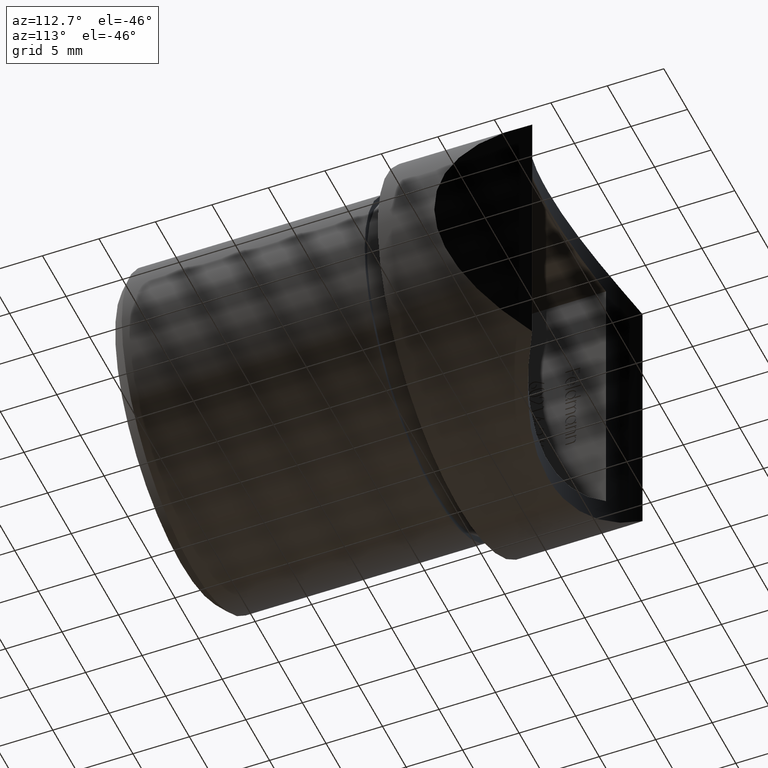
[diagram: clean part render]
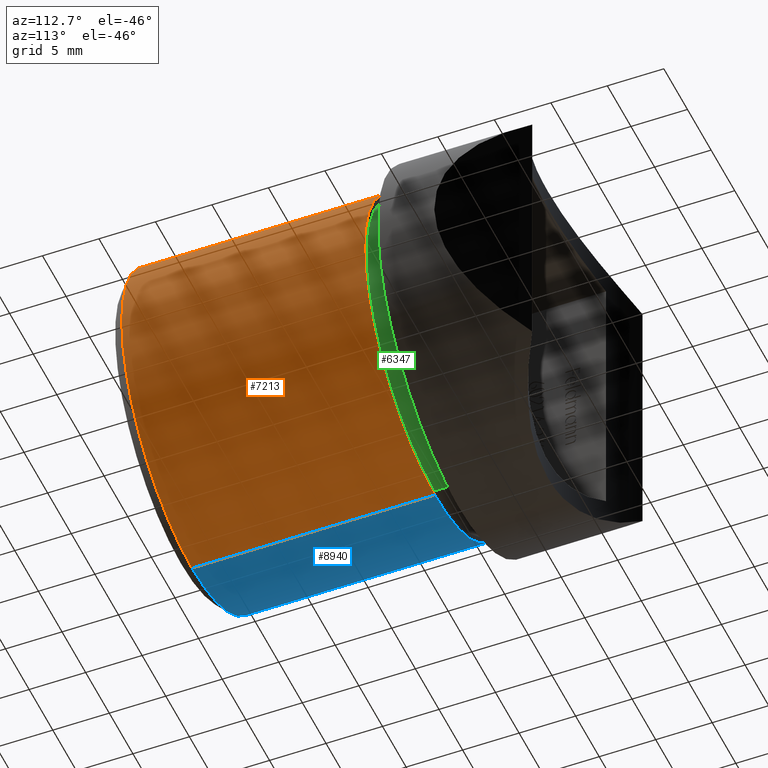
[diagram: same view with three faces highlighted in distinct colors, each labeled with its STEP entity id]
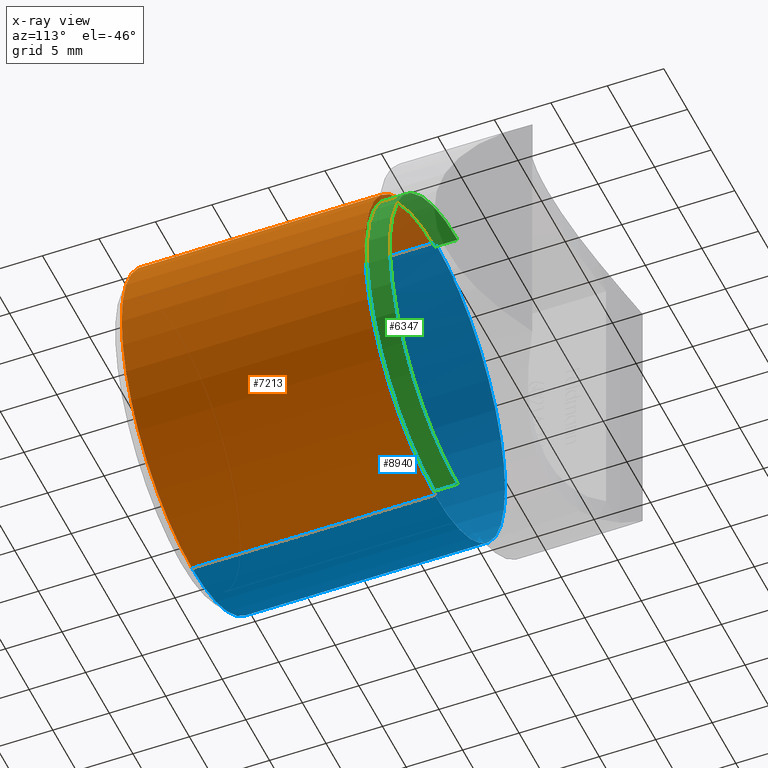
[diagram: x-ray of the same camera — body ghosted, the three highlighted faces saturated]
A machine part, auxiliary view with three faces highlighted in distinct colors.
The next image is the same camera in x-ray (body ghosted, the three faces saturated) — at least one of them is partly hidden behind the body in this view.
Their STEP definitions:

[orange] entity #7213 — the highlighted cylindrical surface (partial cylindrical patch) has radius 14.85 mm, axis along (-0, 1, 0).
#65 = CARTESIAN_POINT ( 'NONE',  ( 0.0000000000000000000, -24.50000000000000000, 0.0000000000000000000 ) ) ;
#868 = AXIS2_PLACEMENT_3D ( 'NONE', #65, #2834, #7757 ) ;
#1061 = VECTOR ( 'NONE', #9323, 1000.000000000000000 ) ;
#1397 = AXIS2_PLACEMENT_3D ( 'NONE', #2095, #8778, #3045 ) ;
#1792 = CARTESIAN_POINT ( 'NONE',  ( 0.0000000000000000000, -24.50000000000000000, 14.85000000000000100 ) ) ;
#1856 = ORIENTED_EDGE ( 'NONE', *, *, #9765, .F. ) ;
#1973 = CARTESIAN_POINT ( 'NONE',  ( 1.818600496733819600E-015, -23.50000000000002100, -14.85000000000000100 ) ) ;
#2095 = CARTESIAN_POINT ( 'NONE',  ( 0.0000000000000000000, -2.000000000000000000, 0.0000000000000000000 ) ) ;
#2637 = CARTESIAN_POINT ( 'NONE',  ( 1.818600496733819600E-015, -24.50000000000000000, -14.85000000000000100 ) ) ;
#2781 = DIRECTION ( 'NONE',  ( -0.0000000000000000000, 1.000000000000000000, 0.0000000000000000000 ) ) ;
#2834 = DIRECTION ( 'NONE',  ( -0.0000000000000000000, 1.000000000000000000, 0.0000000000000000000 ) ) ;
#2890 = ORIENTED_EDGE ( 'NONE', *, *, #9294, .T. ) ;
#3045 = DIRECTION ( 'NONE',  ( 0.0000000000000000000, 0.0000000000000000000, -1.000000000000000000 ) ) ;
#3308 = AXIS2_PLACEMENT_3D ( 'NONE', #3918, #10581, #4898 ) ;
#3506 = EDGE_CURVE ( 'NONE', #12388, #11783, #4063, .T. ) ;
#3566 = CYLINDRICAL_SURFACE ( 'NONE', #868, 14.85000000000000100 ) ;
#3918 = CARTESIAN_POINT ( 'NONE',  ( 0.0000000000000000000, -23.50000000000002100, 0.0000000000000000000 ) ) ;
#4063 = CIRCLE ( 'NONE', #3308, 14.85000000000000100 ) ;
#4137 = CARTESIAN_POINT ( 'NONE',  ( 1.818600496733819600E-015, -2.000000000000000000, -14.85000000000000100 ) ) ;
#4610 = LINE ( 'NONE', #1792, #9685 ) ;
#4898 = DIRECTION ( 'NONE',  ( 0.0000000000000000000, 0.0000000000000000000, -1.000000000000000000 ) ) ;
#4962 = CARTESIAN_POINT ( 'NONE',  ( 0.0000000000000000000, -23.50000000000002100, 14.85000000000000100 ) ) ;
#7213 = ADVANCED_FACE ( 'NONE', ( #8660 ), #3566, .T. ) ;
#7757 = DIRECTION ( 'NONE',  ( 0.0000000000000000000, 0.0000000000000000000, 1.000000000000000000 ) ) ;
#8002 = EDGE_LOOP ( 'NONE', ( #11117, #10816, #2890, #1856 ) ) ;
#8099 = VERTEX_POINT ( 'NONE', #4137 ) ;
#8363 = LINE ( 'NONE', #2637, #1061 ) ;
#8660 = FACE_OUTER_BOUND ( 'NONE', #8002, .T. ) ;
#8778 = DIRECTION ( 'NONE',  ( 0.0000000000000000000, -1.000000000000000000, 0.0000000000000000000 ) ) ;
#9294 = EDGE_CURVE ( 'NONE', #8099, #9338, #12405, .T. ) ;
#9323 = DIRECTION ( 'NONE',  ( -0.0000000000000000000, 1.000000000000000000, 0.0000000000000000000 ) ) ;
#9338 = VERTEX_POINT ( 'NONE', #9776 ) ;
#9685 = VECTOR ( 'NONE', #2781, 1000.000000000000000 ) ;
#9765 = EDGE_CURVE ( 'NONE', #12388, #9338, #4610, .T. ) ;
#9776 = CARTESIAN_POINT ( 'NONE',  ( 0.0000000000000000000, -2.000000000000000000, 14.85000000000000100 ) ) ;
#10581 = DIRECTION ( 'NONE',  ( 0.0000000000000000000, 1.000000000000000000, 0.0000000000000000000 ) ) ;
#10816 = ORIENTED_EDGE ( 'NONE', *, *, #12175, .T. ) ;
#11117 = ORIENTED_EDGE ( 'NONE', *, *, #3506, .T. ) ;
#11783 = VERTEX_POINT ( 'NONE', #1973 ) ;
#12175 = EDGE_CURVE ( 'NONE', #11783, #8099, #8363, .T. ) ;
#12388 = VERTEX_POINT ( 'NONE', #4962 ) ;
#12405 = CIRCLE ( 'NONE', #1397, 14.85000000000000100 ) ;

[blue] entity #8940 — the highlighted cylindrical surface (partial cylindrical patch) has radius 14.85 mm, axis along (-0, 1, 0).
#171 = AXIS2_PLACEMENT_3D ( 'NONE', #9085, #11082, #9157 ) ;
#1061 = VECTOR ( 'NONE', #9323, 1000.000000000000000 ) ;
#1750 = DIRECTION ( 'NONE',  ( 0.0000000000000000000, 1.000000000000000000, 0.0000000000000000000 ) ) ;
#1792 = CARTESIAN_POINT ( 'NONE',  ( 0.0000000000000000000, -24.50000000000000000, 14.85000000000000100 ) ) ;
#1968 = EDGE_CURVE ( 'NONE', #11783, #12388, #7688, .T. ) ;
#1973 = CARTESIAN_POINT ( 'NONE',  ( 1.818600496733819600E-015, -23.50000000000002100, -14.85000000000000100 ) ) ;
#2173 = ORIENTED_EDGE ( 'NONE', *, *, #9765, .T. ) ;
#2514 = CIRCLE ( 'NONE', #2662, 14.85000000000000100 ) ;
#2637 = CARTESIAN_POINT ( 'NONE',  ( 1.818600496733819600E-015, -24.50000000000000000, -14.85000000000000100 ) ) ;
#2662 = AXIS2_PLACEMENT_3D ( 'NONE', #10700, #4999, #11687 ) ;
#2781 = DIRECTION ( 'NONE',  ( -0.0000000000000000000, 1.000000000000000000, 0.0000000000000000000 ) ) ;
#4137 = CARTESIAN_POINT ( 'NONE',  ( 1.818600496733819600E-015, -2.000000000000000000, -14.85000000000000100 ) ) ;
#4346 = CYLINDRICAL_SURFACE ( 'NONE', #171, 14.85000000000000100 ) ;
#4610 = LINE ( 'NONE', #1792, #9685 ) ;
#4962 = CARTESIAN_POINT ( 'NONE',  ( 0.0000000000000000000, -23.50000000000002100, 14.85000000000000100 ) ) ;
#4999 = DIRECTION ( 'NONE',  ( 0.0000000000000000000, -1.000000000000000000, 0.0000000000000000000 ) ) ;
#5047 = ORIENTED_EDGE ( 'NONE', *, *, #12175, .F. ) ;
#7496 = CARTESIAN_POINT ( 'NONE',  ( 0.0000000000000000000, -23.50000000000002100, 0.0000000000000000000 ) ) ;
#7688 = CIRCLE ( 'NONE', #11699, 14.85000000000000100 ) ;
#8099 = VERTEX_POINT ( 'NONE', #4137 ) ;
#8363 = LINE ( 'NONE', #2637, #1061 ) ;
#8422 = DIRECTION ( 'NONE',  ( 0.0000000000000000000, 0.0000000000000000000, -1.000000000000000000 ) ) ;
#8717 = EDGE_LOOP ( 'NONE', ( #5047, #8872, #2173, #11428 ) ) ;
#8872 = ORIENTED_EDGE ( 'NONE', *, *, #1968, .T. ) ;
#8940 = ADVANCED_FACE ( 'NONE', ( #11979 ), #4346, .T. ) ;
#9085 = CARTESIAN_POINT ( 'NONE',  ( 0.0000000000000000000, -24.50000000000000000, 0.0000000000000000000 ) ) ;
#9157 = DIRECTION ( 'NONE',  ( 0.0000000000000000000, 0.0000000000000000000, 1.000000000000000000 ) ) ;
#9315 = EDGE_CURVE ( 'NONE', #9338, #8099, #2514, .T. ) ;
#9323 = DIRECTION ( 'NONE',  ( -0.0000000000000000000, 1.000000000000000000, 0.0000000000000000000 ) ) ;
#9338 = VERTEX_POINT ( 'NONE', #9776 ) ;
#9685 = VECTOR ( 'NONE', #2781, 1000.000000000000000 ) ;
#9765 = EDGE_CURVE ( 'NONE', #12388, #9338, #4610, .T. ) ;
#9776 = CARTESIAN_POINT ( 'NONE',  ( 0.0000000000000000000, -2.000000000000000000, 14.85000000000000100 ) ) ;
#10700 = CARTESIAN_POINT ( 'NONE',  ( 0.0000000000000000000, -2.000000000000000000, 0.0000000000000000000 ) ) ;
#11082 = DIRECTION ( 'NONE',  ( -0.0000000000000000000, 1.000000000000000000, 0.0000000000000000000 ) ) ;
#11428 = ORIENTED_EDGE ( 'NONE', *, *, #9315, .T. ) ;
#11687 = DIRECTION ( 'NONE',  ( 0.0000000000000000000, 0.0000000000000000000, -1.000000000000000000 ) ) ;
#11699 = AXIS2_PLACEMENT_3D ( 'NONE', #7496, #1750, #8422 ) ;
#11783 = VERTEX_POINT ( 'NONE', #1973 ) ;
#11979 = FACE_OUTER_BOUND ( 'NONE', #8717, .T. ) ;
#12175 = EDGE_CURVE ( 'NONE', #11783, #8099, #8363, .T. ) ;
#12388 = VERTEX_POINT ( 'NONE', #4962 ) ;

[green] entity #6347 — the highlighted cylindrical surface (partial cylindrical patch) has radius 14.35 mm, axis along (-0, 1, -0).
#35 = VECTOR ( 'NONE', #9129, 1000.000000000000000 ) ;
#377 = CARTESIAN_POINT ( 'NONE',  ( 0.0000000000000000000, 0.0000000000000000000, 0.0000000000000000000 ) ) ;
#596 = CARTESIAN_POINT ( 'NONE',  ( 0.0000000000000000000, -2.000000000000000000, 14.35000000000000100 ) ) ;
#641 = AXIS2_PLACEMENT_3D ( 'NONE', #6112, #8013, #1318 ) ;
#732 = CIRCLE ( 'NONE', #7459, 14.35000000000000100 ) ;
#803 = CARTESIAN_POINT ( 'NONE',  ( 1.757368156776452000E-015, -2.000000000000000000, -14.35000000000000100 ) ) ;
#818 = ORIENTED_EDGE ( 'NONE', *, *, #5284, .F. ) ;
#1312 = DIRECTION ( 'NONE',  ( 0.0000000000000000000, 0.0000000000000000000, 1.000000000000000000 ) ) ;
#1318 = DIRECTION ( 'NONE',  ( 0.0000000000000000000, 0.0000000000000000000, 1.000000000000000000 ) ) ;
#1564 = VERTEX_POINT ( 'NONE', #596 ) ;
#2508 = CARTESIAN_POINT ( 'NONE',  ( 0.0000000000000000000, -2.000000000000000000, 0.0000000000000000000 ) ) ;
#2548 = LINE ( 'NONE', #11010, #35 ) ;
#2571 = CARTESIAN_POINT ( 'NONE',  ( 1.757368156776452000E-015, 0.0000000000000000000, -14.35000000000000100 ) ) ;
#3467 = DIRECTION ( 'NONE',  ( 0.0000000000000000000, 0.0000000000000000000, -1.000000000000000000 ) ) ;
#3684 = ORIENTED_EDGE ( 'NONE', *, *, #8803, .T. ) ;
#4619 = EDGE_LOOP ( 'NONE', ( #7866, #6520, #3684, #818 ) ) ;
#5036 = VERTEX_POINT ( 'NONE', #2571 ) ;
#5284 = EDGE_CURVE ( 'NONE', #1564, #7578, #2548, .T. ) ;
#5503 = EDGE_CURVE ( 'NONE', #9406, #5036, #10926, .T. ) ;
#6112 = CARTESIAN_POINT ( 'NONE',  ( 0.0000000000000000000, -2.000000000000000000, 0.0000000000000000000 ) ) ;
#6347 = ADVANCED_FACE ( 'NONE', ( #11199 ), #10915, .T. ) ;
#6520 = ORIENTED_EDGE ( 'NONE', *, *, #5503, .T. ) ;
#7063 = DIRECTION ( 'NONE',  ( -0.0000000000000000000, -1.000000000000000000, -0.0000000000000000000 ) ) ;
#7196 = CIRCLE ( 'NONE', #11957, 14.35000000000000100 ) ;
#7459 = AXIS2_PLACEMENT_3D ( 'NONE', #377, #7063, #1312 ) ;
#7578 = VERTEX_POINT ( 'NONE', #9611 ) ;
#7866 = ORIENTED_EDGE ( 'NONE', *, *, #8945, .F. ) ;
#7878 = CARTESIAN_POINT ( 'NONE',  ( 1.757368156776452000E-015, -2.000000000000000000, -14.35000000000000100 ) ) ;
#8013 = DIRECTION ( 'NONE',  ( -0.0000000000000000000, 1.000000000000000000, -0.0000000000000000000 ) ) ;
#8098 = VECTOR ( 'NONE', #8786, 1000.000000000000000 ) ;
#8786 = DIRECTION ( 'NONE',  ( -0.0000000000000000000, 1.000000000000000000, -0.0000000000000000000 ) ) ;
#8803 = EDGE_CURVE ( 'NONE', #5036, #7578, #732, .T. ) ;
#8945 = EDGE_CURVE ( 'NONE', #9406, #1564, #7196, .T. ) ;
#9129 = DIRECTION ( 'NONE',  ( -0.0000000000000000000, 1.000000000000000000, -0.0000000000000000000 ) ) ;
#9197 = DIRECTION ( 'NONE',  ( 0.0000000000000000000, -1.000000000000000000, 0.0000000000000000000 ) ) ;
#9406 = VERTEX_POINT ( 'NONE', #7878 ) ;
#9611 = CARTESIAN_POINT ( 'NONE',  ( 0.0000000000000000000, 0.0000000000000000000, 14.35000000000000100 ) ) ;
#10915 = CYLINDRICAL_SURFACE ( 'NONE', #641, 14.35000000000000100 ) ;
#10926 = LINE ( 'NONE', #803, #8098 ) ;
#11010 = CARTESIAN_POINT ( 'NONE',  ( 0.0000000000000000000, -2.000000000000000000, 14.35000000000000100 ) ) ;
#11199 = FACE_OUTER_BOUND ( 'NONE', #4619, .T. ) ;
#11957 = AXIS2_PLACEMENT_3D ( 'NONE', #2508, #9197, #3467 ) ;